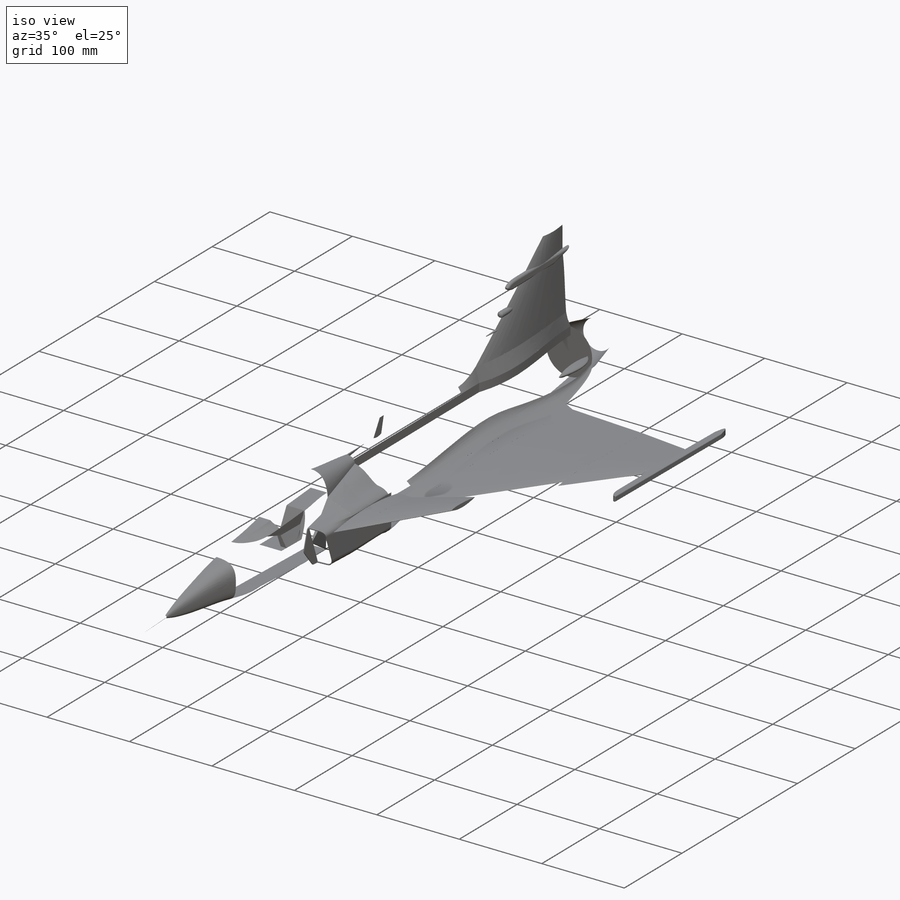
[diagram: iso view]
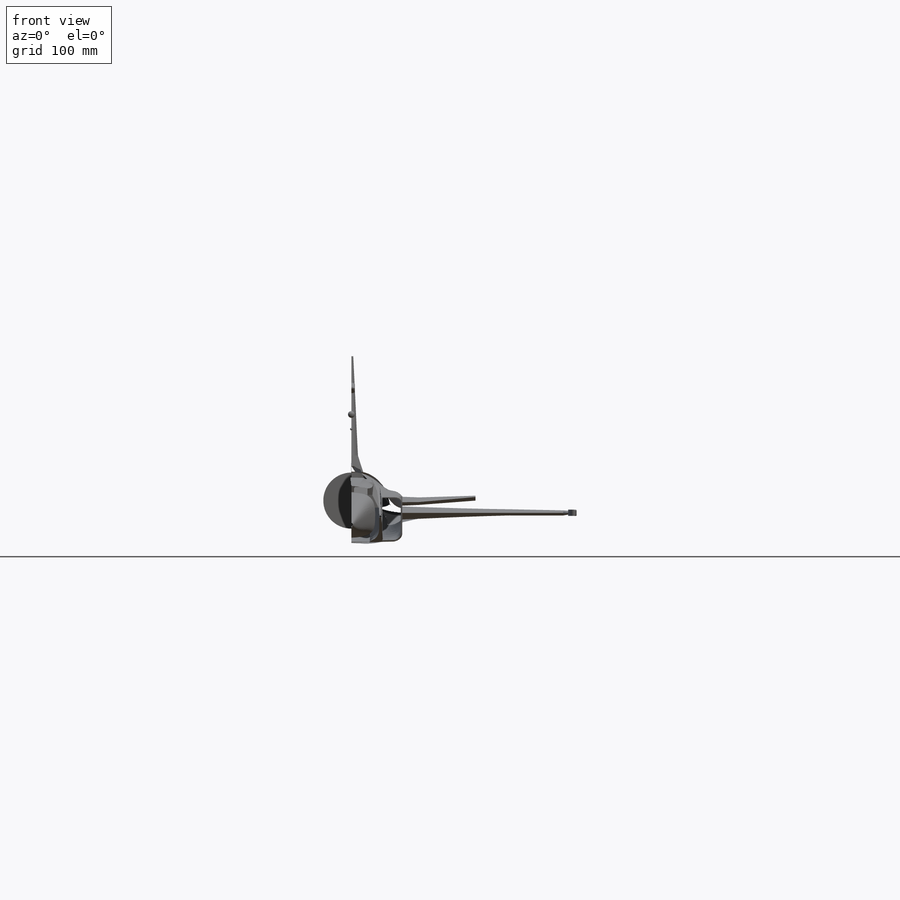
[diagram: front view]
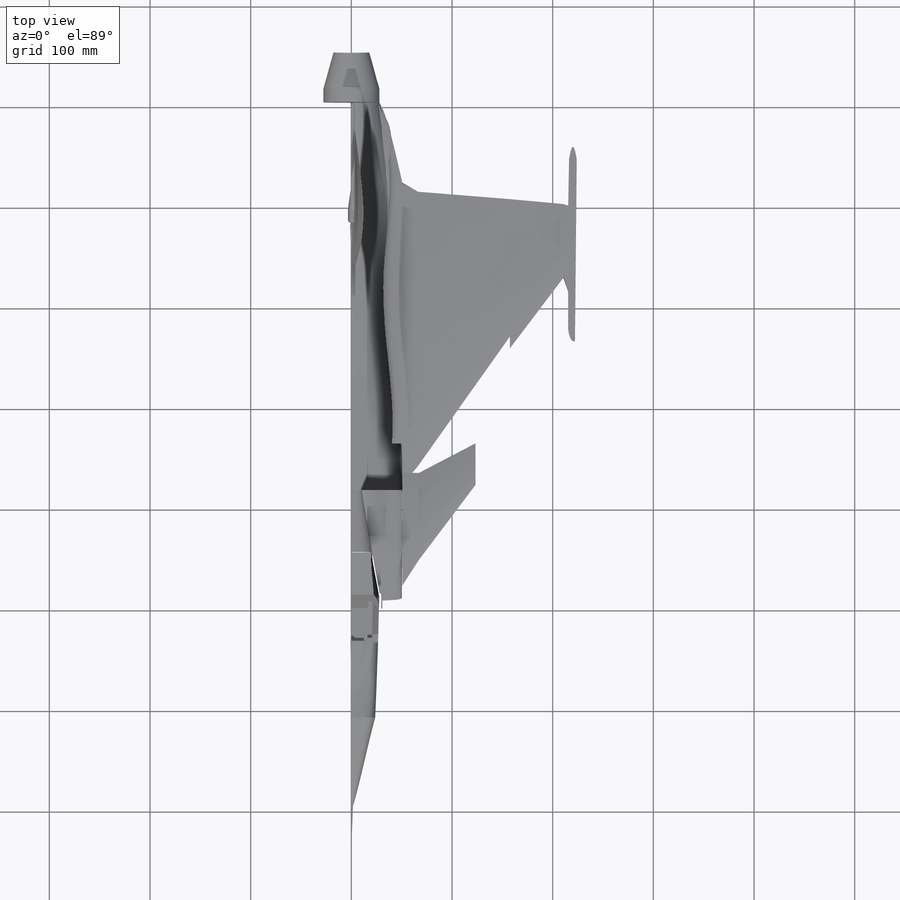
[diagram: top view]
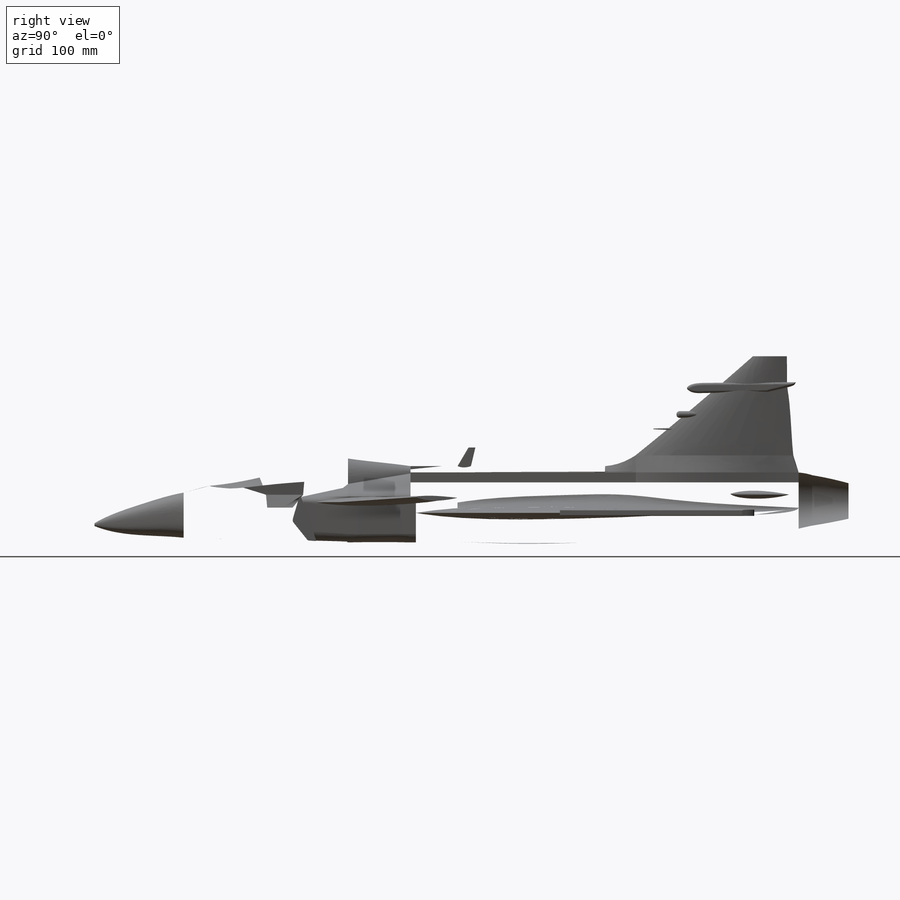
[diagram: right view]
SOLIDWORKS PART (.sldprt)
format: sldprt  version: not decoded by parser v0  size: 5,870,592 bytes
history: native  units: mm
features: sketch x199, plane x70, extrude x8, surface_op x3, fillet x2, material x1, mirror x1 (+13 scaffold rows collapsed)
feature tree (297):
  scaffold x13  (default folders/planes/origin — collapsed)
  material  "Material <not specified>"
  sketch  "Sketch1"
  sketch  "Sketch2"
  sketch  "Sketch3"
  sketch  "Sketch Picture5"
  sketch  "Sketch4"
  plane  "main wing top"  Offset=10.5mm
  plane  "mitten"  Offset=0mm
  sketch  "Sketch12"
  sketch  "Sketch16"
  plane  "Plane8"  Offset=50.5mm
  sketch  "Sketch23"
  plane  "Plane9"  Offset=210.5mm
  sketch  "Sketch25"
  sketch  "Sketch26"
  sketch  "3DSketch2"
  plane  "mitt vinge"
  sketch  "Sketch27"
  plane  "Plane11"
  sketch  "Sketch28"
  sketch  "Sketch29"
  sketch  "Sketch27<8>"
  sketch  "Sketch27<9>"
  sketch  "Sketch30"
  plane  "luftintag fram"  Offset=212mm
  plane  "framför tail"
  plane  "front mitten"
  sketch  "Sketch33"
  plane  "före avgasrör"
  sketch  "Sketch34"
  sketch  "Sketch36"
  sketch  "Sketch37"
  plane  "mitt slutning top"
  sketch  "Sketch41"
  sketch  "Sketch43"
  sketch  "Sketch44"
  sketch  "Sketch46"
  surface_op  "Surface-Extrude3"
  surface_op  "Surface-Fill6"
  sketch  "Sketch34<4>"
  sketch  "Sketch49"
  sketch  "Sketch52"
  sketch  "Sketch53"
  sketch  "3DSketch6"
  sketch  "Sketch56"
  plane  "Plane19"
  sketch  "Sketch58"
  sketch  "Sketch59"
  plane  "Plane20"
  sketch  "Sketch60"
  sketch  "Sketch61"
  sketch  "Sketch62"
  sketch  "Sketch63"
  plane  "Plane21"
  sketch  "Sketch64"
  sketch  "Sketch65"
  plane  "Plane22"
  sketch  "Sketch66"
  sketch  "Sketch67"
  plane  "Plane23"
  sketch  "Sketch68"
  plane  "Plane24"
  sketch  "Sketch70"
  sketch  "Sketch71"
  sketch  "Sketch74"
  sketch  "Sketch75"
  sketch  "Sketch77"
  sketch  "Sketch78"
  plane  "Plane25"
  plane  "Plane26"
  sketch  "Sketch81"
  plane  "Plane27"  Offset=114.5mm
  sketch  "Sketch83"
  sketch  "Sketch91"
  sketch  "Sketch97"
  sketch  "Sketch101"
  sketch  "Sketch102"
  plane  "Plane30"
  sketch  "Sketch104"
  sketch  "Sketch106"
  sketch  "Sketch109"
  sketch  "3DSketch7"
  sketch  "Sketch110"
  sketch  "Sketch113"
  plane  "Plane31"
  sketch  "Sketch114"
  sketch  "Sketch117"
  sketch  "Sketch118"
  sketch  "Sketch119"
  sketch  "Sketch121"  dims[D1=1.0mm]
  sketch  "Sketch123"
  sketch  "Sketch129"
  sketch  "Sketch130"
  extrude  "Boss-Extrude1"  Depth=1mm
  sketch  "Sketch139"
  sketch  "Sketch146"
  plane  "Plane34"
  sketch  "Sketch147"
  plane  "Plane35"
  sketch  "Sketch148"
  sketch  "Sketch149"
  sketch  "3DSketch10"
  plane  "cockpit top 1"
  sketch  "Sketch151"
  plane  "cockpit top2"
  sketch  "Sketch152"
  plane  "cockpit top 3"
  sketch  "Sketch153"
  sketch  "3DSketch11"
  plane  "cockpit top0"
  sketch  "Sketch154"
  sketch  "Sketch157"
  plane  "under s 1"
  plane  "under s 2"
  plane  "under s 3"
  plane  "under s 4"
  sketch  "Sketch159"
  plane  "under sida 5"
  sketch  "Sketch162"
  sketch  "Sketch163"
  plane  "Plane42"
  sketch  "Sketch165"  dims[D3=60.0mm D4=60.0mm D1=3.4mm D2=3.4mm]
  sketch  "Sketch166"
  plane  "bakom hjul"
  sketch  "Sketch169"
  plane  "luft b top"
  sketch  "* under s 4"
  sketch  "Sketch174"
  plane  "under s 6"
  sketch  "Sketch175"
  sketch  "Sketch179"
  sketch  "* under s 2"
  sketch  "* under s 3"
  sketch  "* under s 1"
  sketch  "Sketch183"
  plane  "mitt d 1"
  plane  "mitt d 2"
  plane  "mitt d 3"
  sketch  "* luft b top"
  sketch  "* mitt d 1"
  sketch  "* mitt d 2"
  sketch  "* mitt d 3"
  sketch  "* mitt d 3 (2)"
  sketch  "3DSketch18"
  sketch  "3DSketch19"
  plane  "Plane50"
  sketch  "Sketch192"
  sketch  "Sketch194"
  sketch  "3DSketch20"
  sketch  "3DSketch21"
  sketch  "3DSketch23"
  sketch  "Sketch207"
  sketch  "Sketch34<7>"
  sketch  "Sketch196"
  sketch  "Sketch197"
  sketch  "Sketch198"
  sketch  "Sketch199"
  sketch  "Sketch203"
  plane  "cockpit front 2"
  plane  "cockpit front 1"
  sketch  "Sketch205"
  sketch  "Sketch206"
  plane  "Plane53"
  sketch  "Sketch208"
  sketch  "Sketch209"
  sketch  "Sketch34<13>"
  sketch  "Sketch210"
  plane  "slutet på avgasrör "
  sketch  "Sketch211"
  sketch  "Sketch212"
  plane  "början på avgasrör"
  sketch  "Sketch214"
  sketch  "Sketch215"
  sketch  "Sketch216"
  plane  "tail bottom 2"
  plane  "tail top"
  sketch  "Sketch219"
  sketch  "Sketch220"
  sketch  "Sketch221"
  sketch  "Sketch223"
  plane  "Plane58"
  sketch  "Sketch224"
  sketch  "Sketch225"
  sketch  "3DSketch25"
  plane  "Plane59"
  sketch  "Sketch227"
  sketch  "3DSketch26"
  sketch  "Sketch229"
  sketch  "Sketch230"
  plane  "Plane60"
  sketch  "Sketch231"
  sketch  "Sketch232"
  sketch  "Sketch233"
  sketch  "Sketch234"
  sketch  "Sketch235"
  sketch  "3DSketch27"
  sketch  "Sketch236"
  plane  "front wing high right"
  plane  "frint wing low right"
  plane  "front wing low rak linje right"  Offset=67mm
  sketch  "Sketch237"
  sketch  "Sketch238"
  sketch  "Sketch239"
  sketch  "Sketch241"
  plane  "Plane65"
  sketch  "Sketch242"
  sketch  "Sketch243"
  sketch  "Sketch246"  dims[D1=~1.129324mm D2=~3.720301mm]
  extrude  "Boss-Extrude3"  Depth=3.2mm
  sketch  "Sketch248"
  plane  "nos spets 1"
  plane  "nos spets 2"
  sketch  "Sketch251"
  sketch  "Sketch253"  dims[D1=~2.848392mm]
  sketch  "Sketch255"  dims[D1=0.7mm]
  sketch  "Sketch256"
  extrude  "Boss-Extrude5"  Depth=3.5mm
  sketch  "Sketch257"  dims[D1=360.0deg]
  fillet  "Fillet6"  Radius=2.5mm
  sketch  "Sketch258"
  plane  "antenn tail"
  sketch  "Sketch259"
  plane  "Plane69"
  sketch  "Sketch260"
  surface_op  "Surface-Fill7"
  fillet  "Fillet11"  Radius=1mm
  sketch  "Sketch261"
  sketch  "Sketch262"
  plane  "mini tail top"
  sketch  "Sketch263"
  sketch  "Sketch264"
  plane  "luft broms h 1"
  plane  "luft broms h 2"
  sketch  "Sketch265"
  extrude  "Boss-Extrude6"  Depth=39.5mm
  sketch  "3DSketch28"
  extrude  "Surface-Extrude4"  [1 undecoded]
  sketch  "Sketch224<13>"  dims[D1=10.0mm]
  sketch  "Sketch266"
  plane  "Plane70"
  sketch  "Sketch267"
  sketch  "Sketch268"
  sketch  "Sketch269"
  sketch  "3DSketch29"
  sketch  "cockpit nedre kant"
  sketch  "Sketch271"
  sketch  "Sketch121<33>"
  sketch  "3DSketch35"
  plane  "före cockpit"
  sketch  "Sketch275"
  sketch  "Sketch277"
  sketch  "Sketch278"
  sketch  "Sketch279"
  sketch  "Sketch281"
  sketch  "Sketch282"
  plane  "Plane73"
  sketch  "Sketch283"
  extrude  "Boss-Extrude8"  Depth=1mm
  sketch  "Sketch284"
  sketch  "Sketch287"
  plane  "efter cockpit"
  sketch  "Sketch286"
  sketch  "Sketch288"
  sketch  "Sketch289"
  plane  "början på cockpit 0"
  sketch  "Sketch290"
  sketch  "Sketch291"
  sketch  "Sketch292"
  sketch  "3DSketch36"
  sketch  "3DSketch37"
  sketch  "3DSketch38"
  plane  "Plane74"
  sketch  "Sketch293"
  sketch  "Sketch295"
  sketch  "Sketch296"
  extrude  "Surface-Extrude5"  [1 undecoded]
  sketch  "Sketch297"
  plane  "Plane75"  Offset=1mm
  sketch  "Sketch299"
  extrude  "Boss-Extrude12"  Depth=0.5mm
  plane  "Plane76"
  sketch  "Sketch301"
  sketch  "Sketch304"
  mirror  "Mirror1"
decode coverage: 15 of 213 modeling features carry decoded parameters
note: ~ marks probable driven/reference dimensions
note: 2 parameter values undecoded
note: suppression state not decoded; provenance and decode notes live in map.json
